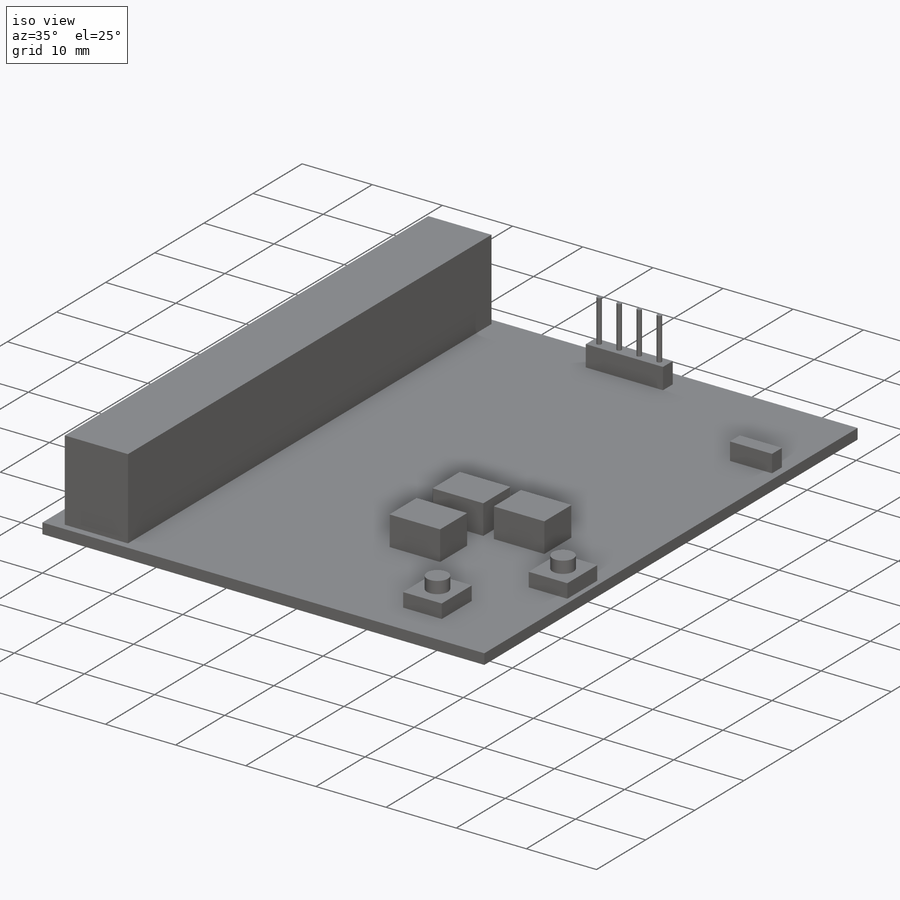
[diagram: iso view]
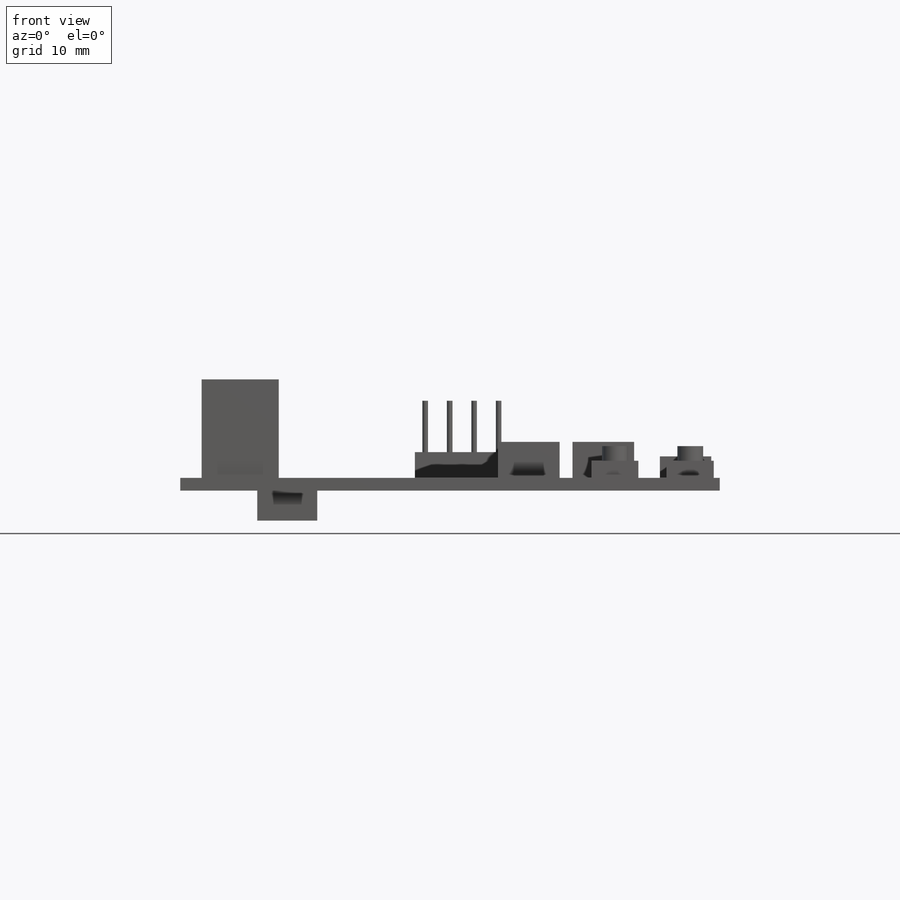
[diagram: front view]
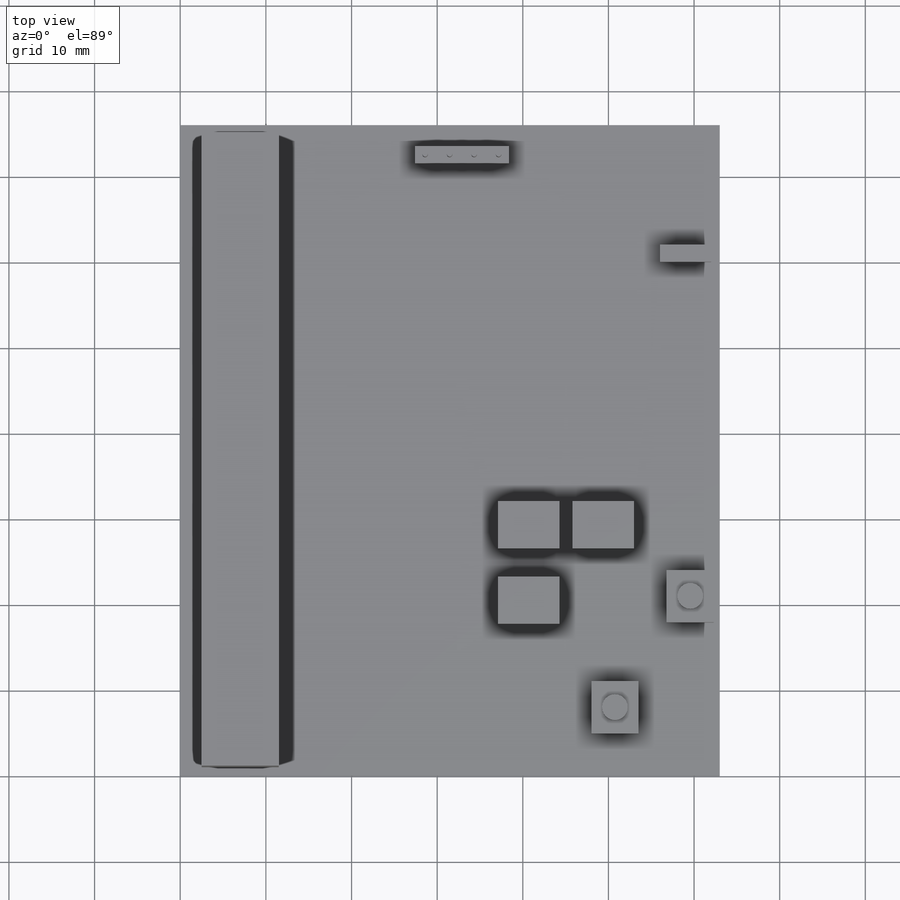
[diagram: top view]
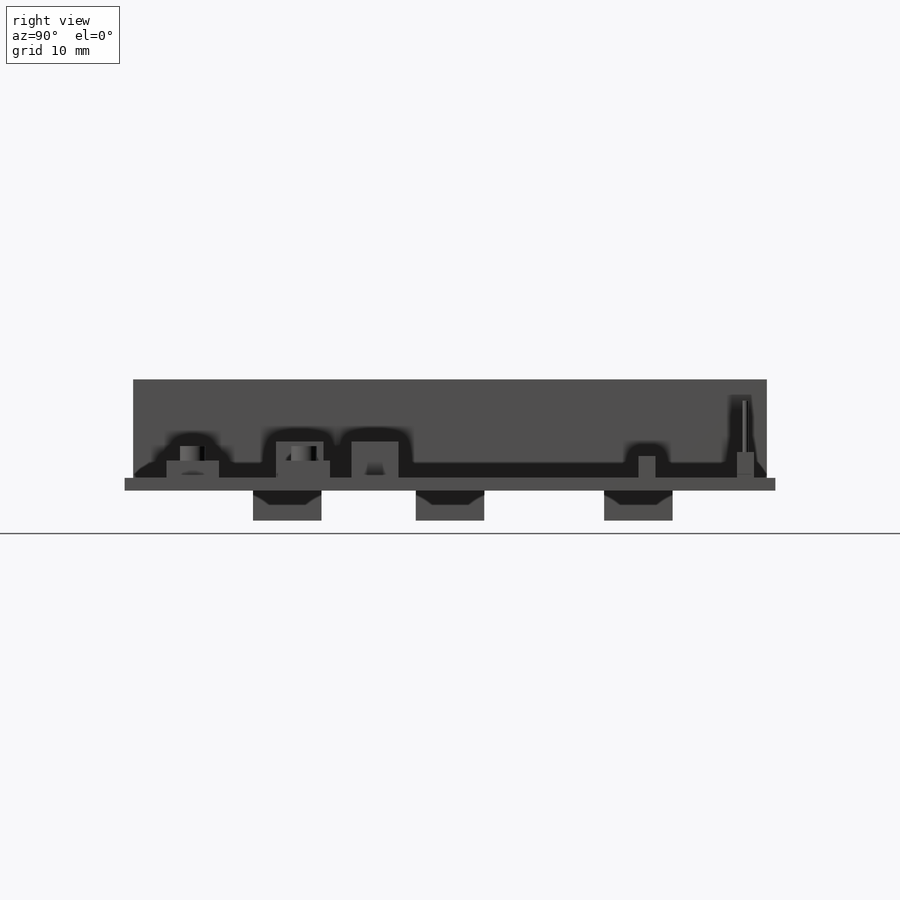
[diagram: right view]
SOLIDWORKS PART (.sldprt)
format: sldprt  version: not decoded by parser v0  size: 399,872 bytes
history: native  units: mm
features: sketch x12, extrude x12, material x1 (+12 scaffold rows collapsed)
feature tree (37):
  scaffold x12  (default folders/planes/origin — collapsed)
  material  "Material <not specified>"
  sketch  "Sketch1"  dims[D1=63.0mm D2=76.0mm]
  extrude  "Boss-Extrude1"  Depth=1.5mm
  sketch  "Sketch2"  dims[D1=74.0mm D2=1.0mm D3=2.5mm D4=9.0mm D5=2.0mm]
  extrude  "Boss-Extrude2"  Depth=11.5mm
  sketch  "Sketch3"  dims[D1=8.0mm D2=8.0mm D3=8.0mm D4=7.0mm D5=7.0mm D6=7.0mm D7=9.0mm D8=9.0mm D9=9.0mm D10=12.0mm D11=34.0mm D12=53.0mm]
  extrude  "Boss-Extrude3"  Depth=3.5mm
  sketch  "Sketch4"  dims[D1=11.0mm D2=2.0mm D3=24.6mm D4=2.5mm]
  extrude  "Boss-Extrude4"  Depth=3mm
  sketch  "Sketch5"  dims[D1=0.65mm D2=1.2mm D4=1.0mm D3=4.0]
  extrude  "Boss-Extrude5"  Depth=6mm
  sketch  "Sketch6"  dims[D1=6.0mm D2=2.0mm D3=1.0mm D4=14.0mm]
  extrude  "Boss-Extrude6"  Depth=2.5mm
  sketch  "Sketch7"  dims[D1=1.5mm D2=2.0]
  extrude  "Boss-Extrude7"  Depth=6mm
  sketch  "Sketch8"  dims[D1=7.2mm D2=7.2mm D3=7.2mm D4=5.5mm D5=5.5mm D6=5.5mm D7=10.0mm D8=18.7mm D9=18.7mm D10=17.7mm D11=26.5mm D12=26.5mm]
  extrude  "Boss-Extrude8"  Depth=4.2mm
  sketch  "Sketch9"  dims[D1=0.7mm D2=6.1mm D3=17.9mm D4=5.5mm]
  extrude  "Boss-Extrude9"  Depth=2mm
  sketch  "Sketch10"  dims[D1=3.0mm D2=2.75mm D3=3.05mm]
  extrude  "Boss-Extrude10"  Depth=1.7mm
  sketch  "Sketch11"  dims[D1=9.5mm D2=4.9mm D3=~3.056335mm]
  extrude  "Boss-Extrude11"  Depth=2mm
  sketch  "Sketch12"  dims[D1=2.75mm D2=3.05mm]
  extrude  "Boss-Extrude12"  Depth=1.7mm
decode coverage: 24 of 24 modeling features carry decoded parameters
note: ~ marks probable driven/reference dimensions
note: suppression state not decoded; provenance and decode notes live in map.json
